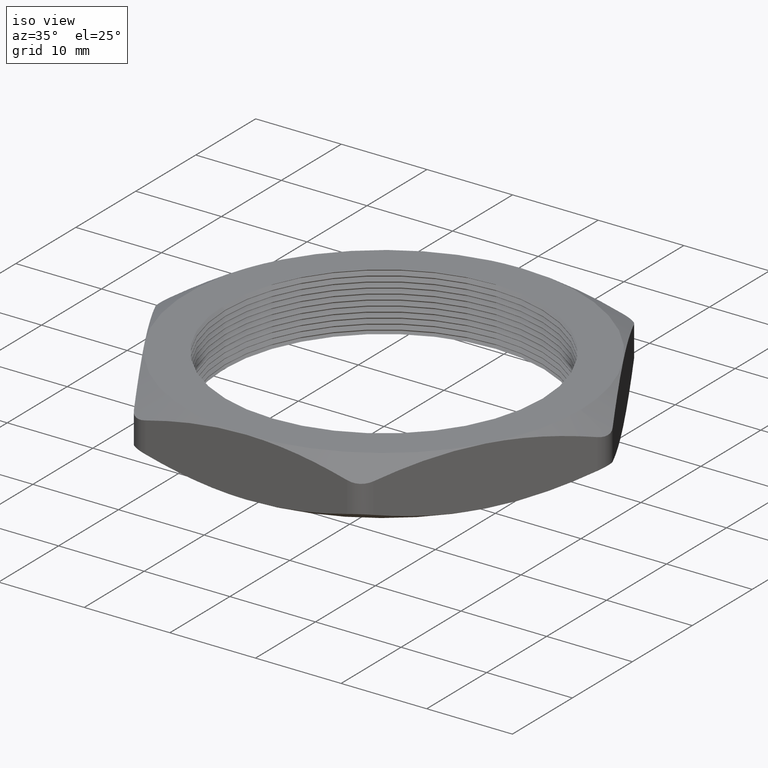
[diagram: clean part render]
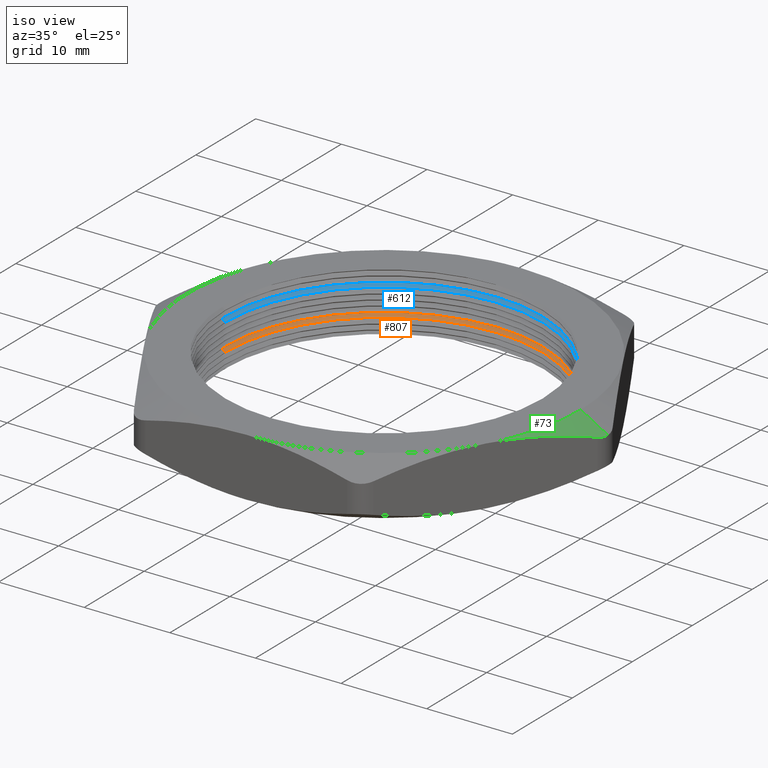
[diagram: same view with three faces highlighted in distinct colors, each labeled with its STEP entity id]
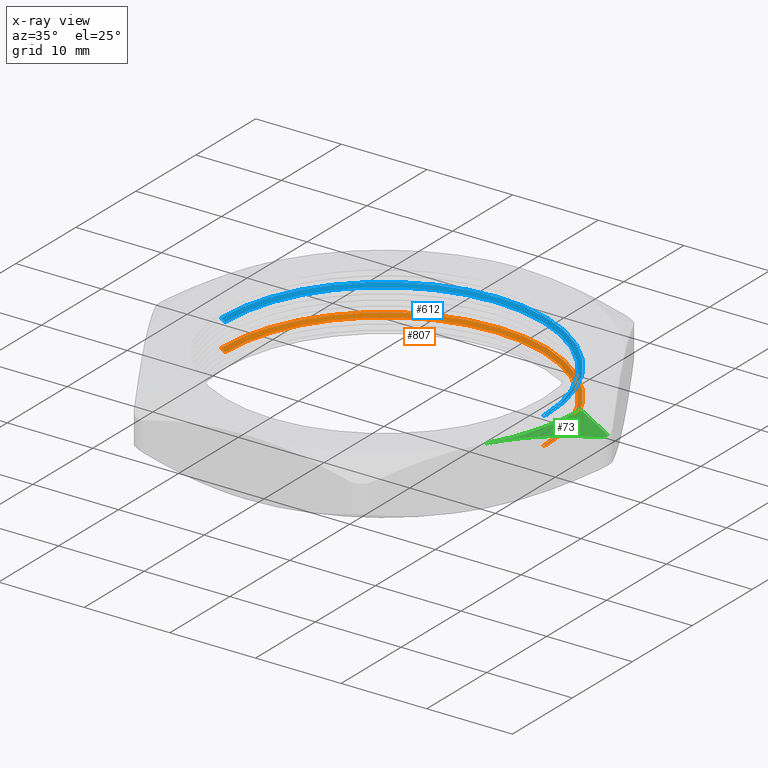
[diagram: x-ray of the same camera — body ghosted, the three highlighted faces saturated]
A machine part, iso view with three faces highlighted in distinct colors.
The next image is the same camera in x-ray (body ghosted, the three faces saturated) — at least one of them is partly hidden behind the body in this view.
Their STEP definitions:

[orange] entity #807 — the highlighted conical surface has half-angle 60 deg.
#260 = VERTEX_POINT ( 'NONE', #1351 ) ;
#262 = EDGE_CURVE ( 'NONE', #336, #260, #1350, .T. ) ;
#334 = VERTEX_POINT ( 'NONE', #1458 ) ;
#336 = VERTEX_POINT ( 'NONE', #1452 ) ;
#338 = EDGE_CURVE ( 'NONE', #334, #339, #1451, .T. ) ;
#339 = VERTEX_POINT ( 'NONE', #1447 ) ;
#689 = EDGE_CURVE ( 'NONE', #336, #334, #2116, .T. ) ;
#791 = ORIENTED_EDGE ( 'NONE', *, *, #338, .F. ) ;
#799 = ORIENTED_EDGE ( 'NONE', *, *, #262, .T. ) ;
#800 = ORIENTED_EDGE ( 'NONE', *, *, #806, .T. ) ;
#801 = ORIENTED_EDGE ( 'NONE', *, *, #689, .F. ) ;
#806 = EDGE_CURVE ( 'NONE', #260, #339, #2322, .T. ) ;
#807 = ADVANCED_FACE ( 'NONE', ( #2318 ), #2317, .F. ) ;
#813 = EDGE_LOOP ( 'NONE', ( #791, #801, #799, #800 ) ) ;
#1347 = DIRECTION ( 'NONE',  ( 0.8660254037844366000, 0.0000000000000000000, 0.5000000000000033300 ) ) ;
#1348 = VECTOR ( 'NONE', #1347, 39.37007874015748100 ) ;
#1349 = CARTESIAN_POINT ( 'NONE',  ( 0.7299999999999999800, 0.0000000000000000000, 0.07190598923241507700 ) ) ;
#1350 = LINE ( 'NONE', #1349, #1348 ) ;
#1351 = CARTESIAN_POINT ( 'NONE',  ( 0.7500000000000001100, 9.184850993605150900E-017, 0.08345299461620772600 ) ) ;
#1447 = CARTESIAN_POINT ( 'NONE',  ( -0.7500000000000001100, 0.0000000000000000000, 0.08345299461620772600 ) ) ;
#1448 = DIRECTION ( 'NONE',  ( -0.8660254037844366000, 1.060575238724904700E-016, 0.5000000000000033300 ) ) ;
#1449 = VECTOR ( 'NONE', #1448, 39.37007874015748100 ) ;
#1450 = CARTESIAN_POINT ( 'NONE',  ( -0.7299999999999999800, 8.939921633775678300E-017, 0.07190598923241507700 ) ) ;
#1451 = LINE ( 'NONE', #1450, #1449 ) ;
#1452 = CARTESIAN_POINT ( 'NONE',  ( 0.7299999999999999800, 8.939921633775678300E-017, 0.07190598923241507700 ) ) ;
#1458 = CARTESIAN_POINT ( 'NONE',  ( -0.7299999999999999800, 0.0000000000000000000, 0.07190598923241507700 ) ) ;
#2112 = DIRECTION ( 'NONE',  ( 1.000000000000000000, 0.0000000000000000000, 0.0000000000000000000 ) ) ;
#2113 = DIRECTION ( 'NONE',  ( 0.0000000000000000000, 0.0000000000000000000, 1.000000000000000000 ) ) ;
#2114 = CARTESIAN_POINT ( 'NONE',  ( 0.0000000000000000000, 0.0000000000000000000, 0.07190598923241507700 ) ) ;
#2115 = AXIS2_PLACEMENT_3D ( 'NONE', #2114, #2113, #2112 ) ;
#2116 = CIRCLE ( 'NONE', #2115, 0.7299999999999999800 ) ;
#2312 = DIRECTION ( 'NONE',  ( 1.000000000000000000, 0.0000000000000000000, 0.0000000000000000000 ) ) ;
#2313 = DIRECTION ( 'NONE',  ( 0.0000000000000000000, 0.0000000000000000000, 1.000000000000000000 ) ) ;
#2314 = CARTESIAN_POINT ( 'NONE',  ( 0.0000000000000000000, 0.0000000000000000000, 0.07190598923241507700 ) ) ;
#2315 = AXIS2_PLACEMENT_3D ( 'NONE', #2314, #2313, #2312 ) ;
#2317 = CONICAL_SURFACE ( 'NONE', #2315, 0.7299999999999999800, 1.047197551196593900 ) ;
#2318 = FACE_OUTER_BOUND ( 'NONE', #813, .T. ) ;
#2319 = DIRECTION ( 'NONE',  ( 1.000000000000000000, 0.0000000000000000000, 0.0000000000000000000 ) ) ;
#2320 = DIRECTION ( 'NONE',  ( 0.0000000000000000000, 0.0000000000000000000, 1.000000000000000000 ) ) ;
#2321 = AXIS2_PLACEMENT_3D ( 'NONE', #2325, #2320, #2319 ) ;
#2322 = CIRCLE ( 'NONE', #2321, 0.7500000000000001100 ) ;
#2325 = CARTESIAN_POINT ( 'NONE',  ( 0.0000000000000000000, 0.0000000000000000000, 0.08345299461620772600 ) ) ;

[blue] entity #612 — the highlighted conical surface has half-angle 60 deg.
#430 = VERTEX_POINT ( 'NONE', #1642 ) ;
#431 = VERTEX_POINT ( 'NONE', #1641 ) ;
#433 = EDGE_CURVE ( 'NONE', #430, #434, #1640, .T. ) ;
#434 = VERTEX_POINT ( 'NONE', #1636 ) ;
#437 = VERTEX_POINT ( 'NONE', #1695 ) ;
#439 = EDGE_CURVE ( 'NONE', #431, #437, #1694, .T. ) ;
#611 = EDGE_CURVE ( 'NONE', #437, #434, #1981, .T. ) ;
#612 = ADVANCED_FACE ( 'NONE', ( #1976 ), #1975, .F. ) ;
#613 = EDGE_LOOP ( 'NONE', ( #614, #627, #628, #629 ) ) ;
#614 = ORIENTED_EDGE ( 'NONE', *, *, #433, .F. ) ;
#627 = ORIENTED_EDGE ( 'NONE', *, *, #2664, .F. ) ;
#628 = ORIENTED_EDGE ( 'NONE', *, *, #439, .T. ) ;
#629 = ORIENTED_EDGE ( 'NONE', *, *, #611, .T. ) ;
#1636 = CARTESIAN_POINT ( 'NONE',  ( -0.7500000000000001100, 0.0000000000000000000, 0.2084529946162077300 ) ) ;
#1637 = DIRECTION ( 'NONE',  ( -0.8660254037844366000, 1.060575238724904700E-016, 0.5000000000000033300 ) ) ;
#1638 = VECTOR ( 'NONE', #1637, 39.37007874015748100 ) ;
#1639 = CARTESIAN_POINT ( 'NONE',  ( -0.7299999999999999800, 8.939921633775678300E-017, 0.1969059892324150600 ) ) ;
#1640 = LINE ( 'NONE', #1639, #1638 ) ;
#1641 = CARTESIAN_POINT ( 'NONE',  ( 0.7299999999999999800, 8.939921633775678300E-017, 0.1969059892324150600 ) ) ;
#1642 = CARTESIAN_POINT ( 'NONE',  ( -0.7299999999999999800, 0.0000000000000000000, 0.1969059892324150600 ) ) ;
#1691 = DIRECTION ( 'NONE',  ( 0.8660254037844366000, 0.0000000000000000000, 0.5000000000000033300 ) ) ;
#1692 = VECTOR ( 'NONE', #1691, 39.37007874015748100 ) ;
#1693 = CARTESIAN_POINT ( 'NONE',  ( 0.7299999999999999800, 0.0000000000000000000, 0.1969059892324150600 ) ) ;
#1694 = LINE ( 'NONE', #1693, #1692 ) ;
#1695 = CARTESIAN_POINT ( 'NONE',  ( 0.7500000000000001100, 9.184850993605150900E-017, 0.2084529946162077300 ) ) ;
#1975 = CONICAL_SURFACE ( 'NONE', #2036, 0.7299999999999999800, 1.047197551196593900 ) ;
#1976 = FACE_OUTER_BOUND ( 'NONE', #613, .T. ) ;
#1977 = DIRECTION ( 'NONE',  ( 1.000000000000000000, 0.0000000000000000000, 0.0000000000000000000 ) ) ;
#1978 = DIRECTION ( 'NONE',  ( 0.0000000000000000000, 0.0000000000000000000, 1.000000000000000000 ) ) ;
#1979 = CARTESIAN_POINT ( 'NONE',  ( 0.0000000000000000000, 0.0000000000000000000, 0.2084529946162077300 ) ) ;
#1980 = AXIS2_PLACEMENT_3D ( 'NONE', #1979, #1978, #1977 ) ;
#1981 = CIRCLE ( 'NONE', #1980, 0.7500000000000001100 ) ;
#2033 = DIRECTION ( 'NONE',  ( 1.000000000000000000, 0.0000000000000000000, 0.0000000000000000000 ) ) ;
#2034 = DIRECTION ( 'NONE',  ( 0.0000000000000000000, 0.0000000000000000000, 1.000000000000000000 ) ) ;
#2035 = CARTESIAN_POINT ( 'NONE',  ( 0.0000000000000000000, 0.0000000000000000000, 0.1969059892324150600 ) ) ;
#2036 = AXIS2_PLACEMENT_3D ( 'NONE', #2035, #2034, #2033 ) ;
#2393 = DIRECTION ( 'NONE',  ( 1.000000000000000000, 0.0000000000000000000, 0.0000000000000000000 ) ) ;
#2394 = DIRECTION ( 'NONE',  ( 0.0000000000000000000, 0.0000000000000000000, 1.000000000000000000 ) ) ;
#2395 = CARTESIAN_POINT ( 'NONE',  ( 0.0000000000000000000, 0.0000000000000000000, 0.1969059892324150600 ) ) ;
#2396 = AXIS2_PLACEMENT_3D ( 'NONE', #2395, #2394, #2393 ) ;
#2405 = CIRCLE ( 'NONE', #2396, 0.7299999999999999800 ) ;
#2664 = EDGE_CURVE ( 'NONE', #431, #430, #2405, .T. ) ;

[green] entity #73 — the highlighted conical surface has half-angle 60 deg.
#53 = VERTEX_POINT ( 'NONE', #902 ) ;
#56 = EDGE_CURVE ( 'NONE', #53, #2693, #900, .T. ) ;
#71 = EDGE_LOOP ( 'NONE', ( #119, #109, #105, #106 ) ) ;
#73 = ADVANCED_FACE ( 'NONE', ( #911 ), #910, .T. ) ;
#75 = EDGE_CURVE ( 'NONE', #53, #128, #965, .T. ) ;
#104 = EDGE_CURVE ( 'NONE', #2693, #135, #1002, .T. ) ;
#105 = ORIENTED_EDGE ( 'NONE', *, *, #56, .T. ) ;
#106 = ORIENTED_EDGE ( 'NONE', *, *, #104, .T. ) ;
#109 = ORIENTED_EDGE ( 'NONE', *, *, #75, .F. ) ;
#119 = ORIENTED_EDGE ( 'NONE', *, *, #136, .F. ) ;
#128 = VERTEX_POINT ( 'NONE', #1065 ) ;
#135 = VERTEX_POINT ( 'NONE', #1111 ) ;
#136 = EDGE_CURVE ( 'NONE', #128, #135, #1104, .T. ) ;
#890 = CARTESIAN_POINT ( 'NONE',  ( 1.016136473773741500, -0.04999999999999973200, 0.2051255290633316200 ) ) ;
#891 = CARTESIAN_POINT ( 'NONE',  ( 0.9781582342842221100, -0.1157802403778662900, 0.2251592805364860400 ) ) ;
#892 = CARTESIAN_POINT ( 'NONE',  ( 0.9398718127573831800, -0.1820942677023503500, 0.2414719789074262800 ) ) ;
#893 = CARTESIAN_POINT ( 'NONE',  ( 0.8818102000647621800, -0.2826599308553553500, 0.2583103655168138600 ) ) ;
#894 = CARTESIAN_POINT ( 'NONE',  ( 0.8623509156285428200, -0.3163644001778220800, 0.2626503763753308400 ) ) ;
#895 = CARTESIAN_POINT ( 'NONE',  ( 0.8329860387546804700, -0.3672258588813557800, 0.2670359336390746900 ) ) ;
#896 = CARTESIAN_POINT ( 'NONE',  ( 0.8231684685533755500, -0.3842303892768899600, 0.2681442785722018600 ) ) ;
#897 = CARTESIAN_POINT ( 'NONE',  ( 0.8034725561546460800, -0.4183447102529144800, 0.2696271948978107300 ) ) ;
#898 = CARTESIAN_POINT ( 'NONE',  ( 0.7935900301262215400, -0.4354617474412679800, 0.2700000000000002400 ) ) ;
#899 = CARTESIAN_POINT ( 'NONE',  ( 0.7837529904249169700, -0.4525000000000000100, 0.2700000000000000200 ) ) ;
#900 = B_SPLINE_CURVE_WITH_KNOTS ( 'NONE', 3,
 ( #899, #898, #897, #896, #895, #894, #893, #892, #891, #890 ),
 .UNSPECIFIED., .F., .F.,
 ( 4, 2, 2, 2, 4 ),
 ( 0.01342887310930227800, 0.01491280702405094000, 0.01639674093879960400, 0.01936460876829693100, 0.02530034442729159300 ),
 .UNSPECIFIED. ) ;
#902 = CARTESIAN_POINT ( 'NONE',  ( 0.7837529904249169700, -0.4525000000000000100, 0.2700000000000000200 ) ) ;
#910 = CONICAL_SURFACE ( 'NONE', #966, 0.9050000000000004700, 1.047197551196600100 ) ;
#911 = FACE_OUTER_BOUND ( 'NONE', #71, .T. ) ;
#958 = DIRECTION ( 'NONE',  ( 1.000000000000000000, 0.0000000000000000000, 0.0000000000000000000 ) ) ;
#959 = DIRECTION ( 'NONE',  ( 0.0000000000000000000, 0.0000000000000000000, 1.000000000000000000 ) ) ;
#960 = CARTESIAN_POINT ( 'NONE',  ( 0.0000000000000000000, 0.0000000000000000000, 0.2700000000000000200 ) ) ;
#961 = AXIS2_PLACEMENT_3D ( 'NONE', #960, #959, #958 ) ;
#962 = DIRECTION ( 'NONE',  ( 1.000000000000000000, 0.0000000000000000000, 0.0000000000000000000 ) ) ;
#963 = DIRECTION ( 'NONE',  ( 0.0000000000000000000, 0.0000000000000000000, -1.000000000000000000 ) ) ;
#964 = CARTESIAN_POINT ( 'NONE',  ( 0.0000000000000000000, 0.0000000000000000000, 0.2700000000000000200 ) ) ;
#965 = CIRCLE ( 'NONE', #961, 0.9050000000000004700 ) ;
#966 = AXIS2_PLACEMENT_3D ( 'NONE', #964, #963, #962 ) ;
#996 = CARTESIAN_POINT ( 'NONE',  ( 1.028357346267063000, -0.01763416593229396100, 0.1987127294951726600 ) ) ;
#997 = CARTESIAN_POINT ( 'NONE',  ( 1.023774756926652700, -0.03457886521971317900, 0.2011088006763631900 ) ) ;
#998 = CARTESIAN_POINT ( 'NONE',  ( 1.020446336732734100, -0.04253509838136470400, 0.2028520502353397000 ) ) ;
#999 = CARTESIAN_POINT ( 'NONE',  ( 1.016136473773741500, -0.04999999999999973200, 0.2051255290633316200 ) ) ;
#1002 = B_SPLINE_CURVE_WITH_KNOTS ( 'NONE', 3,
 ( #999, #998, #997, #996, #1051, #1050 ),
 .UNSPECIFIED., .F., .F.,
 ( 4, 2, 4 ),
 ( 2.538052214298621600E-018, 0.0006702371634161673800, 0.001340474326832332400 ),
 .UNSPECIFIED. ) ;
#1050 = CARTESIAN_POINT ( 'NONE',  ( 1.029533933395297800, -9.321136975569140600E-026, 0.1981003000309826400 ) ) ;
#1051 = CARTESIAN_POINT ( 'NONE',  ( 1.029533933395297800, -0.008810929487792083100, 0.1981003000309826100 ) ) ;
#1065 = CARTESIAN_POINT ( 'NONE',  ( 0.9050000000000004700, 0.0000000000000000000, 0.2700000000000000200 ) ) ;
#1101 = DIRECTION ( 'NONE',  ( 0.8660254037844397100, 0.0000000000000000000, -0.4999999999999979500 ) ) ;
#1102 = VECTOR ( 'NONE', #1101, 39.37007874015748900 ) ;
#1103 = CARTESIAN_POINT ( 'NONE',  ( 0.9050000000000004700, 0.0000000000000000000, 0.2700000000000000200 ) ) ;
#1104 = LINE ( 'NONE', #1103, #1102 ) ;
#1111 = CARTESIAN_POINT ( 'NONE',  ( 1.029533933395297800, -9.321136975569140600E-026, 0.1981003000309826400 ) ) ;
#2457 = CARTESIAN_POINT ( 'NONE',  ( 1.016136473773741500, -0.04999999999999973200, 0.2051255290633316200 ) ) ;
#2693 = VERTEX_POINT ( 'NONE', #2457 ) ;